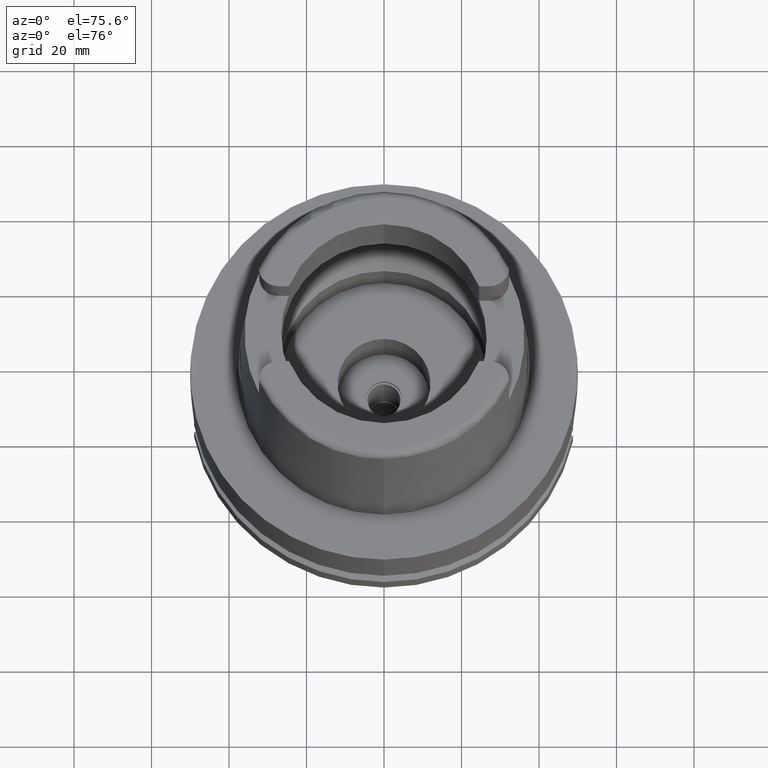
[diagram: clean part render]
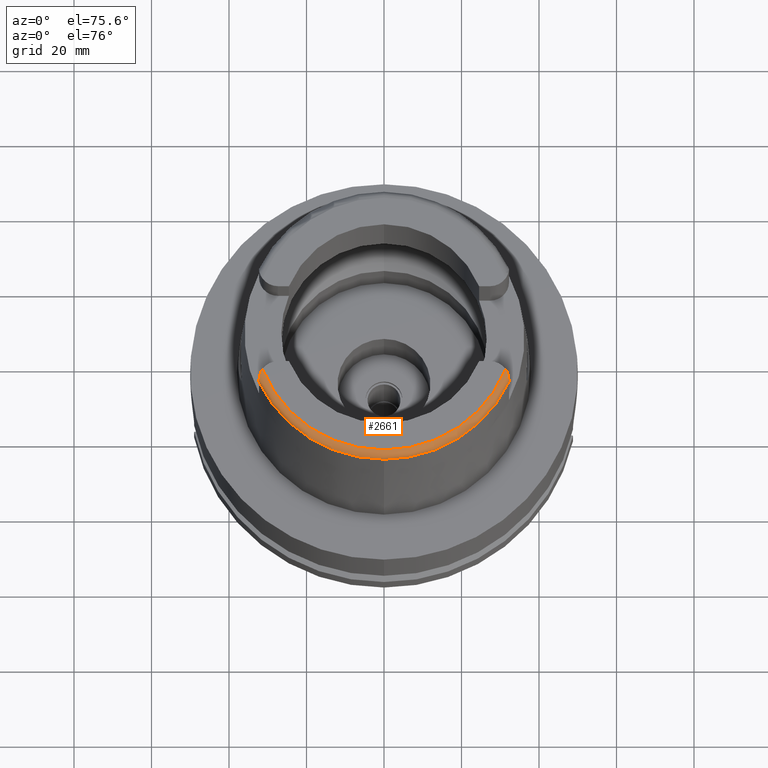
[diagram: same view with one face highlighted and labeled with its STEP entity id]
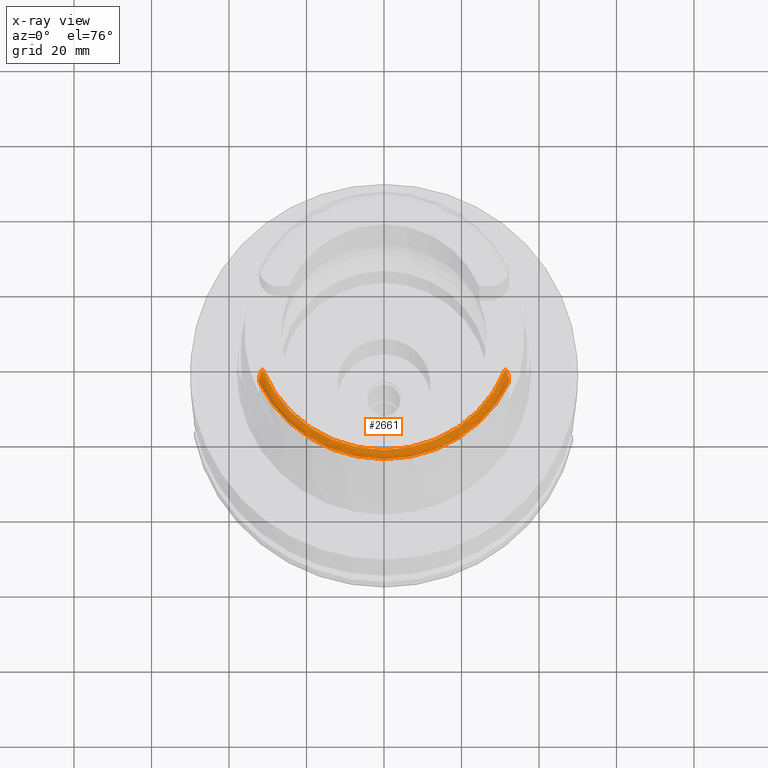
[diagram: x-ray of the same camera — body ghosted, the highlighted face saturated]
A machine part, auxiliary view. The second image highlights one B-rep face of the part: STEP entity #2661.
The next image is the same camera in x-ray: the body ghosted, the highlighted face saturated — about 0% of this face is hidden behind the body in this view.
In plain terms, the highlighted toroidal blend (fillet) surface has major radius 33.5974 mm and minor (blend) radius 2 mm.
Its self-contained STEP definition (entity closure, byte-faithful):
#199=CARTESIAN_POINT('',(0.E0,0.E0,5.E1));
#200=DIRECTION('',(0.E0,0.E0,-1.E0));
#201=DIRECTION('',(9.332215253018E-1,-3.593015233942E-1,0.E0));
#202=AXIS2_PLACEMENT_3D('',#199,#200,#201);
#221=CARTESIAN_POINT('',(-3.224999491821E1,-1.506448488355E1,4.809973197981E1));
#222=CARTESIAN_POINT('',(-3.224999491821E1,-1.505854037801E1,4.815004682292E1));
#223=CARTESIAN_POINT('',(-3.225000237150E1,-1.503787306189E1,4.824981201486E1));
#224=CARTESIAN_POINT('',(-3.224999932243E1,-1.497923241381E1,4.840022080660E1));
#225=CARTESIAN_POINT('',(-3.225E1,-1.492270464737E1,4.849768939279E1));
#226=CARTESIAN_POINT('',(-3.225E1,-1.489E1,4.854599893822E1));
#231=CARTESIAN_POINT('',(-3.225E1,-1.489E1,4.854599893822E1));
#232=CARTESIAN_POINT('',(-3.225E1,-1.484133504002E1,4.861788419870E1));
#233=CARTESIAN_POINT('',(-3.224853727531E1,-1.472777242622E1,4.875906342999E1));
#234=CARTESIAN_POINT('',(-3.223753960543E1,-1.451631294576E1,4.896406471439E1));
#235=CARTESIAN_POINT('',(-3.221172273387E1,-1.425833605726E1,4.917006097160E1));
#236=CARTESIAN_POINT('',(-3.216206780947E1,-1.394576306724E1,4.937966243737E1));
#237=CARTESIAN_POINT('',(-3.207424249596E1,-1.357052088571E1,4.958890910882E1));
#238=CARTESIAN_POINT('',(-3.194121937949E1,-1.316284488701E1,4.977138188235E1));
#239=CARTESIAN_POINT('',(-3.176525177443E1,-1.275399894165E1,4.990805908125E1));
#240=CARTESIAN_POINT('',(-3.155810188322E1,-1.237423235572E1,4.998630548689E1));
#241=CARTESIAN_POINT('',(-3.142128650261E1,-1.216692990795E1,5.E1));
#242=CARTESIAN_POINT('',(-3.135385269249E1,-1.207161079257E1,5.E1));
#247=CARTESIAN_POINT('',(3.135385269249E1,-1.207161079257E1,5.E1));
#248=CARTESIAN_POINT('',(3.142230523049E1,-1.216836990132E1,5.E1));
#249=CARTESIAN_POINT('',(3.156028047479E1,-1.237780455610E1,4.998583930300E1));
#250=CARTESIAN_POINT('',(3.176658097472E1,-1.275688183189E1,4.990718900862E1));
#251=CARTESIAN_POINT('',(3.194166100541E1,-1.316410385653E1,4.977085383933E1));
#252=CARTESIAN_POINT('',(3.207440801952E1,-1.357122313998E1,4.958852042645E1));
#253=CARTESIAN_POINT('',(3.216183367430E1,-1.394477840039E1,4.938020266058E1));
#254=CARTESIAN_POINT('',(3.221148882635E1,-1.425653720422E1,4.917135686499E1));
#255=CARTESIAN_POINT('',(3.223746939821E1,-1.451514282799E1,4.896514658487E1));
#256=CARTESIAN_POINT('',(3.224854907287E1,-1.472784604484E1,4.875904743269E1));
#257=CARTESIAN_POINT('',(3.225E1,-1.484138752557E1,4.861780666987E1));
#258=CARTESIAN_POINT('',(3.225E1,-1.489E1,4.854599893822E1));
#263=CARTESIAN_POINT('',(3.225E1,-1.489E1,4.854599893822E1));
#264=CARTESIAN_POINT('',(3.225E1,-1.492408728896E1,4.849564702902E1));
#265=CARTESIAN_POINT('',(3.225000073602E1,-1.498188487832E1,4.839507165957E1));
#266=CARTESIAN_POINT('',(3.224999742392E1,-1.503955887651E1,4.824379630445E1));
#267=CARTESIAN_POINT('',(3.225000552017E1,-1.505882422597E1,4.814722108920E1));
#268=CARTESIAN_POINT('',(3.225000552017E1,-1.506439822657E1,4.810004223409E1));
#273=CARTESIAN_POINT('',(0.E0,0.E0,4.809987853799E1));
#274=DIRECTION('',(0.E0,0.E0,-1.E0));
#275=DIRECTION('',(9.060280460805E-1,-4.232176505246E-1,0.E0));
#276=AXIS2_PLACEMENT_3D('',#273,#274,#275);
#281=CARTESIAN_POINT('',(0.E0,0.E0,4.809987853799E1));
#282=DIRECTION('',(0.E0,0.E0,-1.E0));
#283=DIRECTION('',(0.E0,-1.E0,0.E0));
#284=AXIS2_PLACEMENT_3D('',#281,#282,#283);
#2195=CARTESIAN_POINT('',(-3.135385269249E1,-1.207161079257E1,5.E1));
#2197=VERTEX_POINT('',#2195);
#2207=CARTESIAN_POINT('',(3.135385269249E1,-1.207161079257E1,5.E1));
#2208=VERTEX_POINT('',#2207);
#2231=VERTEX_POINT('',#231);
#2238=VERTEX_POINT('',#221);
#2239=VERTEX_POINT('',#258);
#2240=VERTEX_POINT('',#268);
#2241=CARTESIAN_POINT('',(1.065814103640E-14,-3.559494289391E1,
4.809987853799E1));
#2242=VERTEX_POINT('',#2241);
#2642=CARTESIAN_POINT('',(0.E0,0.E0,4.8E1));
#2643=DIRECTION('',(0.E0,0.E0,1.E0));
#2644=DIRECTION('',(-4.184165975220E-4,-9.999999124638E-1,0.E0));
#2645=AXIS2_PLACEMENT_3D('',#2642,#2643,#2644);
#2646=TOROIDAL_SURFACE('',#2645,3.359743838136E1,2.E0);
#2648=ORIENTED_EDGE('',*,*,#2647,.T.);
#2649=ORIENTED_EDGE('',*,*,#2633,.T.);
#2650=ORIENTED_EDGE('',*,*,#2622,.F.);
#2652=ORIENTED_EDGE('',*,*,#2651,.T.);
#2654=ORIENTED_EDGE('',*,*,#2653,.T.);
#2656=ORIENTED_EDGE('',*,*,#2655,.T.);
#2658=ORIENTED_EDGE('',*,*,#2657,.T.);
#2659=EDGE_LOOP('',(#2648,#2649,#2650,#2652,#2654,#2656,#2658));
#2660=FACE_OUTER_BOUND('',#2659,.F.);
#203=CIRCLE('',#202,3.359743838136E1);
#227=B_SPLINE_CURVE_WITH_KNOTS('',3,(#221,#222,#223,#224,#225,#226),
.UNSPECIFIED.,.F.,.F.,(4,1,1,4),(0.E0,3.333333333333E-1,6.666666666667E-1,1.E0),
.UNSPECIFIED.);
#243=B_SPLINE_CURVE_WITH_KNOTS('',3,(#231,#232,#233,#234,#235,#236,#237,#238,
#239,#240,#241,#242),.UNSPECIFIED.,.F.,.F.,(4,1,1,1,1,1,1,1,1,4),(0.E0,
1.111111111111E-1,2.222222222222E-1,3.333333333333E-1,4.444444444444E-1,
5.555555555556E-1,6.666666666667E-1,7.777777777778E-1,8.888888888889E-1,1.E0),
.UNSPECIFIED.);
#259=B_SPLINE_CURVE_WITH_KNOTS('',3,(#247,#248,#249,#250,#251,#252,#253,#254,
#255,#256,#257,#258),.UNSPECIFIED.,.F.,.F.,(4,1,1,1,1,1,1,1,1,4),(0.E0,
1.111111111111E-1,2.222222222222E-1,3.333333333333E-1,4.444444444444E-1,
5.555555555556E-1,6.666666666667E-1,7.777777777778E-1,8.888888888889E-1,1.E0),
.UNSPECIFIED.);
#269=B_SPLINE_CURVE_WITH_KNOTS('',3,(#263,#264,#265,#266,#267,#268),
.UNSPECIFIED.,.F.,.F.,(4,1,1,4),(0.E0,3.333333333333E-1,6.666666666667E-1,1.E0),
.UNSPECIFIED.);
#277=CIRCLE('',#276,3.559494289391E1);
#285=CIRCLE('',#284,3.559494289391E1);
#2622=EDGE_CURVE('',#2208,#2197,#203,.T.);
#2633=EDGE_CURVE('',#2231,#2197,#243,.T.);
#2647=EDGE_CURVE('',#2238,#2231,#227,.T.);
#2651=EDGE_CURVE('',#2208,#2239,#259,.T.);
#2653=EDGE_CURVE('',#2239,#2240,#269,.T.);
#2655=EDGE_CURVE('',#2240,#2242,#277,.T.);
#2657=EDGE_CURVE('',#2242,#2238,#285,.T.);
#2661=ADVANCED_FACE('',(#2660),#2646,.T.);